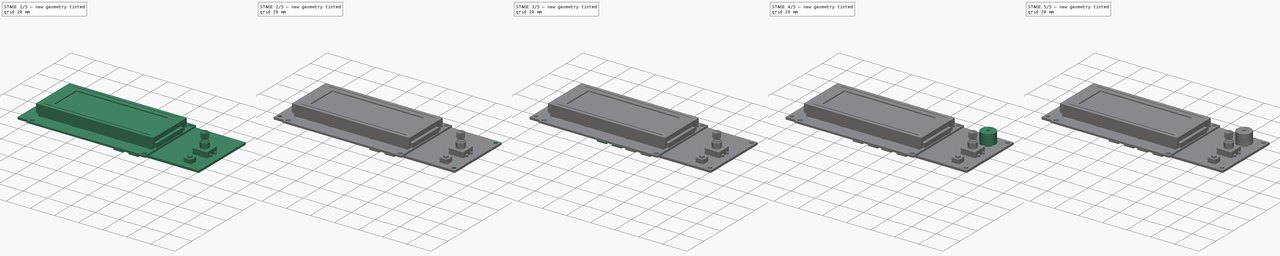
[diagram: build sequence overview — one tinted view per stage of 5, left to right]
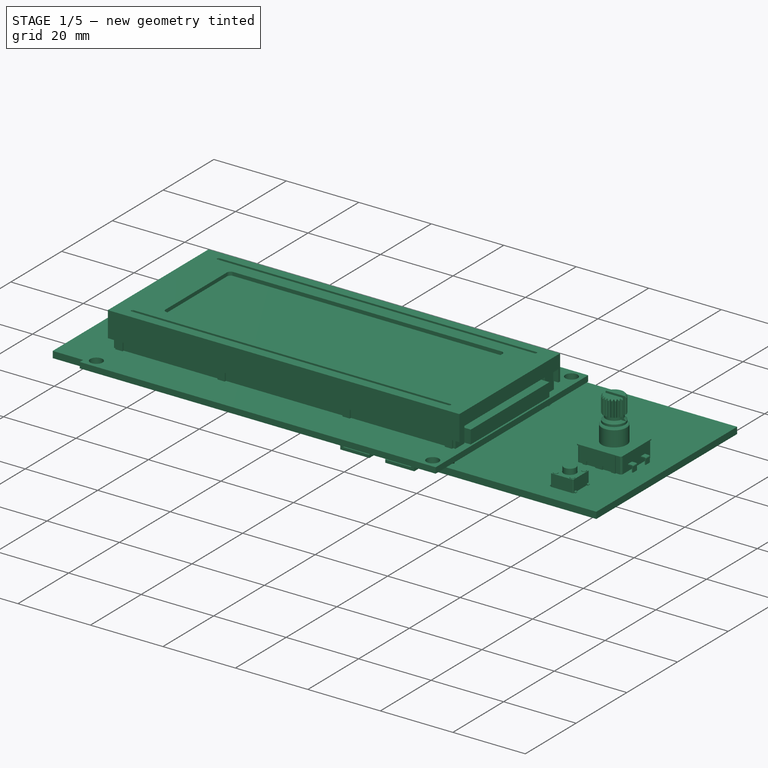
[diagram: stage 1 of 5 — iso view after this stage's code; geometry added in this stage tinted green]
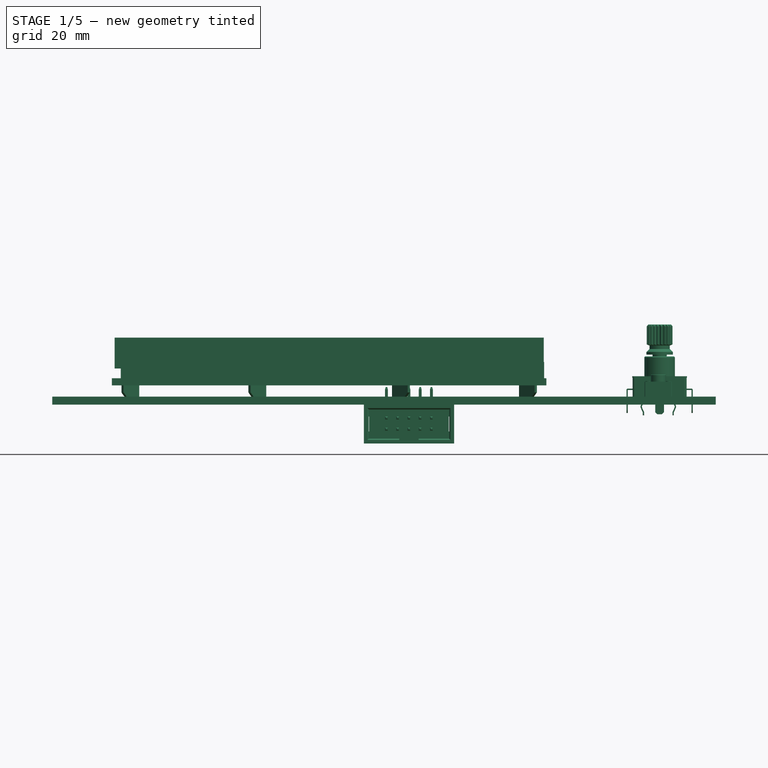
[diagram: stage 1 of 5 — front view after this stage's code; geometry added in this stage tinted green]
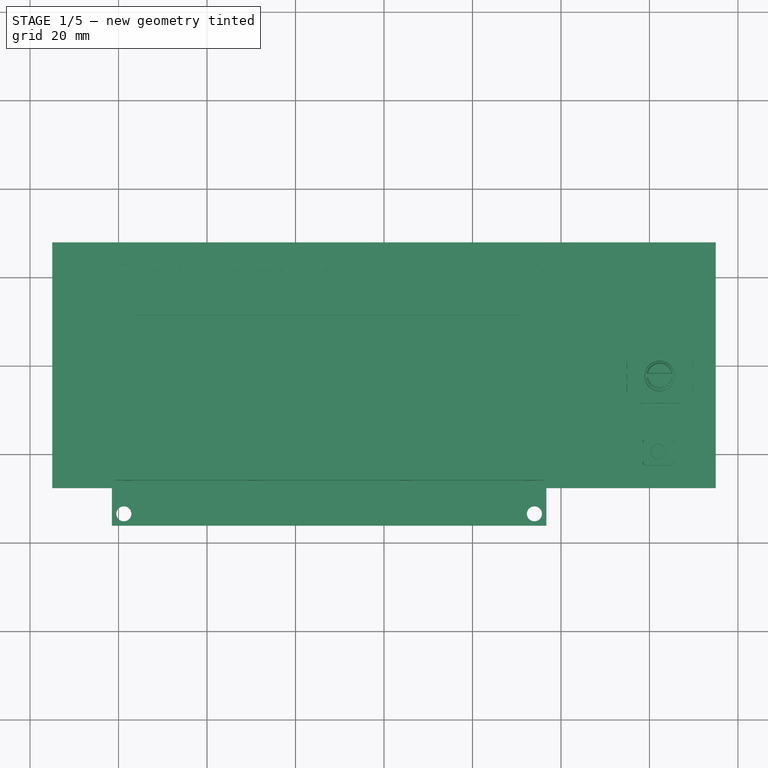
[diagram: stage 1 of 5 — top view after this stage's code; geometry added in this stage tinted green]
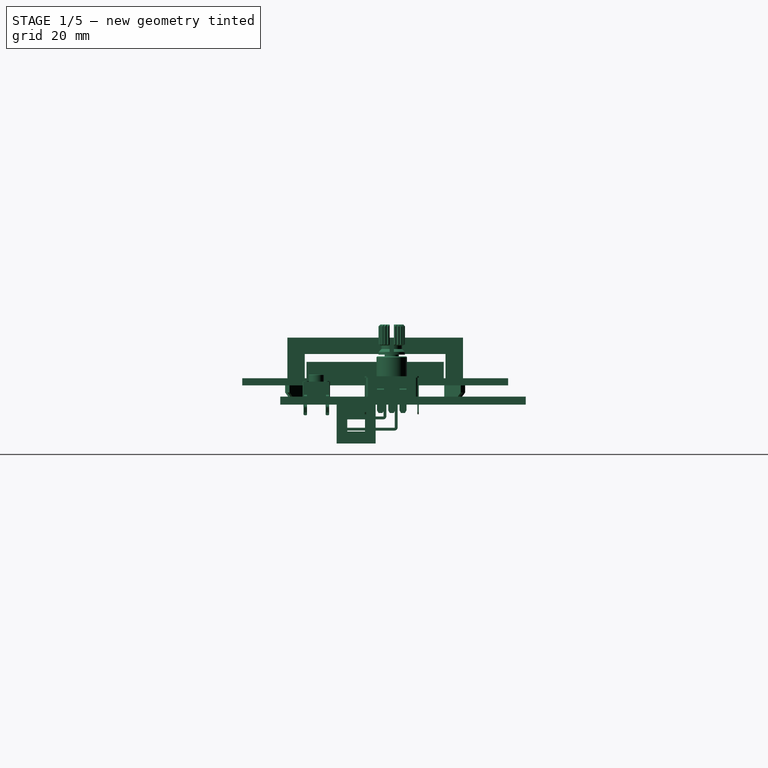
[diagram: stage 1 of 5 — right view after this stage's code; geometry added in this stage tinted green]
FCSTD DOCUMENT  (FreeCAD 0.14R3310 (Git))
Label: 78. PANEL PANTALLA LCD (Obijuan FreeCAD partes electricas)
License: CC-BY 3.0
LicenseURL: http://creativecommons.org/licenses/by/3.0/
objects: Sketcher::SketchObject×11, Part::Compound×10, PartDesign::Pocket×8, PartDesign::LinearPattern×4, PartDesign::Pad×3, App::DocumentObjectGroup×3, Part::Feature×2, Part::Cylinder×1
note: 50 computed .brp shape members not serialized (recipe doc carries the construction recipe); baked Part::Feature solids carry a one-line shape summary decoded from their .brp

FEATURE [Sketcher::SketchObject] Sketch  label="pcb-main-sketch"
  sketch-geometry (4):
    g0: LineSegment StartX=-75 StartY=27.75 StartZ=0 EndX=75 EndY=27.75 EndZ=0
    g1: LineSegment StartX=75 StartY=27.75 StartZ=0 EndX=75 EndY=-27.75 EndZ=0
    g2: LineSegment StartX=75 StartY=-27.75 StartZ=0 EndX=-75 EndY=-27.75 EndZ=0
    g3: LineSegment StartX=-75 StartY=-27.75 StartZ=0 EndX=-75 EndY=27.75 EndZ=0
  constraints (11):
    c: Coincident(g0,g1)
    c: Coincident(g1,g2)
    c: Coincident(g2,g3)
    c: Coincident(g3,g0)
    c: Horizontal(g0)
    c: Horizontal(g2)
    c: Vertical(g1)
    c: Vertical(g3)
    c: Symmetric(g0,g1,g-1)
    c: DistanceX(g0) = 150
    c: DistanceY(g1) = -55.5
FEATURE [PartDesign::Pad] Pad  label="pcb-main"
  Length = 1.8
  Length2 = 100
  Sketch = -> Sketch
  Type = 0
FEATURE [Part::Compound] Compound006  label="2x5-pin-box-header-male-right-angle001"
  Placement = pos=(5.64,-6.21,-4.4) rot=(1,0,0;3.14159rad)
FEATURE [Part::Compound] Compound007  label="lcd-4x20-backlight"
  Placement = pos=(-12.4,-6.30677,5.94) rot=(0,0,1;0rad)
FEATURE [Part::Compound] Compound008  label="pushbutton-mini"
  Placement = pos=(62,-19.6,1.8) rot=(0,0,1;0rad)
FEATURE [Part::Compound] Compound009  label="rotatory-encoder"
  Placement = pos=(62.3,-2.55,1.8) rot=(0,0,1;0rad)
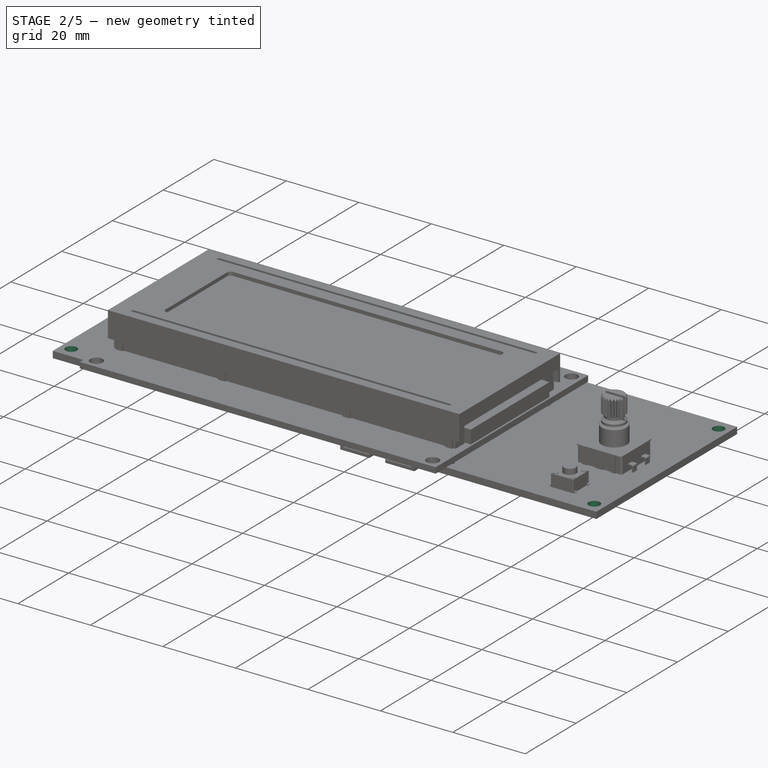
[diagram: stage 2 of 5 — iso view after this stage's code; geometry added in this stage tinted green]
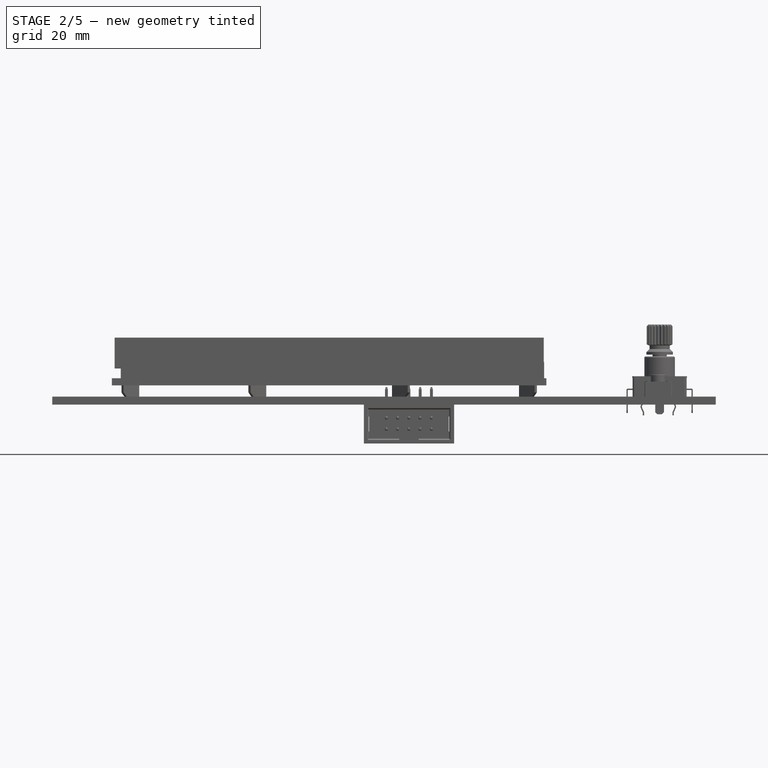
[diagram: stage 2 of 5 — front view after this stage's code; geometry added in this stage tinted green]
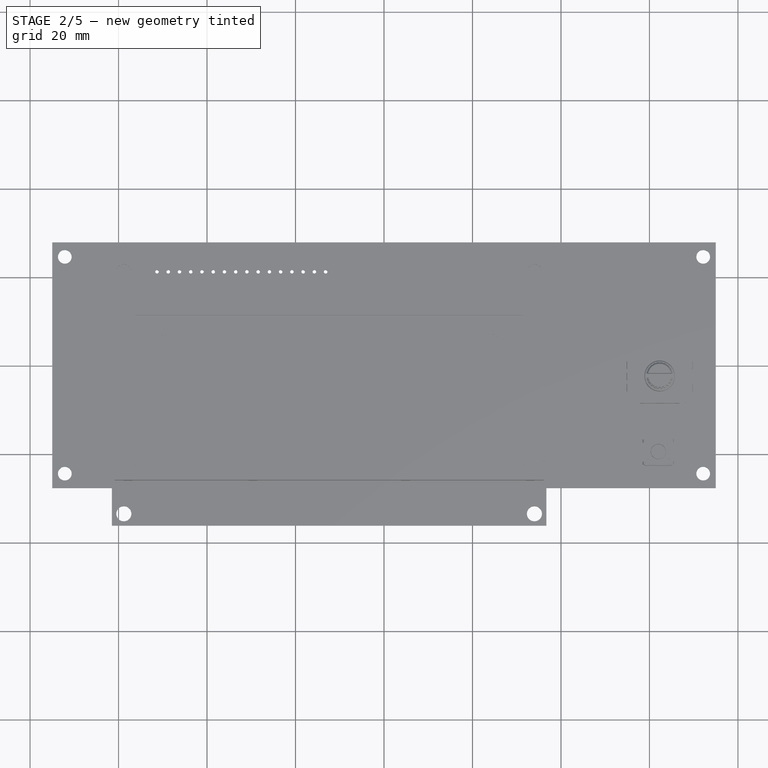
[diagram: stage 2 of 5 — top view after this stage's code; geometry added in this stage tinted green]
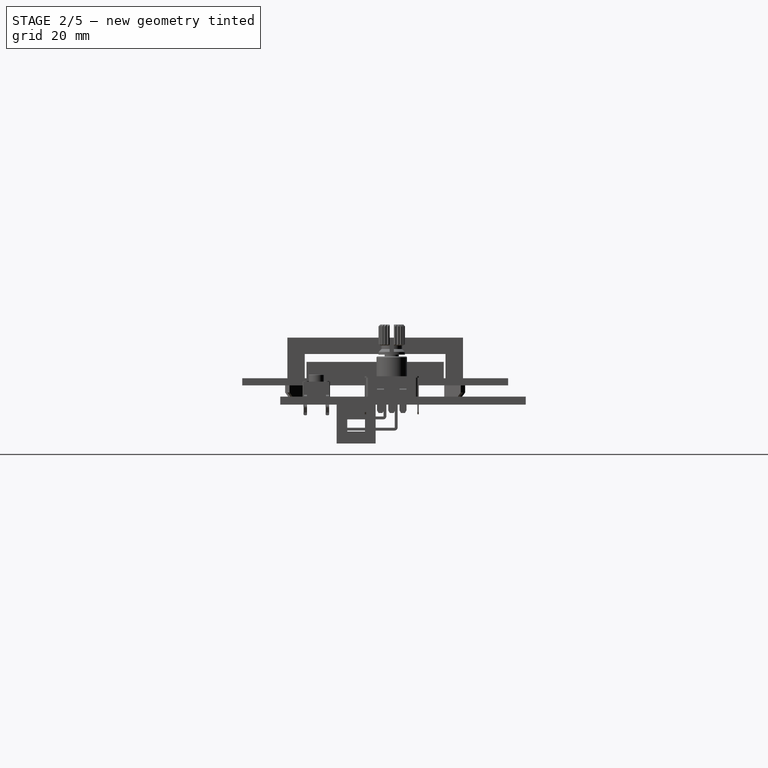
[diagram: stage 2 of 5 — right view after this stage's code; geometry added in this stage tinted green]
FEATURE [App::DocumentObjectGroup] Group  label="sdcard-slot-src"
  Group = -> [Pad001,Pocket,Pocket001]
FEATURE [Part::Feature] Pocket001001  label="sdcard-slot"
  Placement = pos=(-59.05,-7.45,0) rot=(0,1,0;3.14159rad)
  shape: bbox 29.1 x 28.6 x 2.9 mm, 18 faces (baked)
FEATURE [Sketcher::SketchObject] Sketch004  label="drills-sketch"
  ExternalGeometry = -> [Pad]
  Placement = pos=(0,0,1.8) rot=(0,0,1;0rad)
  Support = -> Pad [Face6]
  sketch-geometry (4):
    g0: Circle CenterX=-72.15 CenterY=24.5 CenterZ=0 NormalX=0 NormalY=0 NormalZ=1 Radius=1.55
    g1: Circle CenterX=72.15 CenterY=24.5 CenterZ=0 NormalX=0 NormalY=0 NormalZ=1 Radius=1.55
    g2: Circle CenterX=-72.15 CenterY=-24.5 CenterZ=0 NormalX=0 NormalY=0 NormalZ=1 Radius=1.55
    g3: Circle CenterX=72.15 CenterY=-24.5 CenterZ=0 NormalX=0 NormalY=0 NormalZ=1 Radius=1.55
  constraints (9):
    c: Radius(g0) = 1.55
    c: Equal(g0,g2)
    c: Equal(g2,g3)
    c: Equal(g3,g1)
    c: DistanceY(g-4,g0) = -3.25
    c: DistanceX(g0,g-4) = -2.85
    c: Symmetric(g0,g2,g-1)
    c: Symmetric(g0,g1,g-2)
    c: Symmetric(g1,g3,g-1)
FEATURE [PartDesign::Pocket] Pocket001002  label="pcs-drills"
  Length = 5
  Sketch = -> Sketch004
  Type = 1
FEATURE [Sketcher::SketchObject] Sketch005  label="lcd-connector-master-pad-sketch"
  Placement = pos=(0,0,1.8) rot=(0,0,1;0rad)
  Support = -> Pocket001002 [Face5]
  sketch-geometry (1):
    g0: Circle CenterX=-51.3 CenterY=21.0432 CenterZ=0 NormalX=0 NormalY=0 NormalZ=1 Radius=0.7
  constraints (1):
    c: Radius(g0) = 0.7
FEATURE [PartDesign::Pocket] Pocket001003  label="lcd-connector-master-pad"
  Length = 5
  Sketch = -> Sketch005
  Type = 1
FEATURE [PartDesign::LinearPattern] LinearPattern  label="pads-array"
  Direction = -> Sketch005 [H_Axis]
  Length = 38.1
  Occurrences = 16
  Originals = -> [Pocket001003]
FEATURE [Sketcher::SketchObject] Sketch006  label="header-1-pad-master-sketch"
  ExternalGeometry = -> [LinearPattern]
  Placement = pos=(0,0,1.8) rot=(0,0,1;0rad)
  Support = -> LinearPattern [Face5]
  sketch-geometry (3):
    g0: Circle CenterX=-23.1 CenterY=-1.55 CenterZ=0 NormalX=0 NormalY=0 NormalZ=1 Radius=0.7
    g1: Circle CenterX=-23.1 CenterY=-4.09 CenterZ=0 NormalX=0 NormalY=0 NormalZ=1 Radius=0.7
    g2: LineSegment [constr] StartX=-23.1 StartY=-1.55 StartZ=0 EndX=-23.1 EndY=-4.09 EndZ=0
  constraints (8):
    c: Radius(g0) = 0.7
    c: DistanceX(g-3,g0) = 51.9
    c: DistanceY(g0,g-4) = -26.2
    c: Equal(g1,g0)
    c: Vertical(g2)
    c: Coincident(g2,g0)
    c: Coincident(g2,g1)
    c: DistanceY(g2) = -2.54
FEATURE [PartDesign::Pocket] Pocket001004  label="header-1-pad-master"
  Length = 5
  Sketch = -> Sketch006
  Type = 1
FEATURE [PartDesign::LinearPattern] LinearPattern001  label="header-1-pads-array"
  Direction = -> Sketch006 [H_Axis]
  Length = 10.16
  Occurrences = 5
  Originals = -> [Pocket001004]
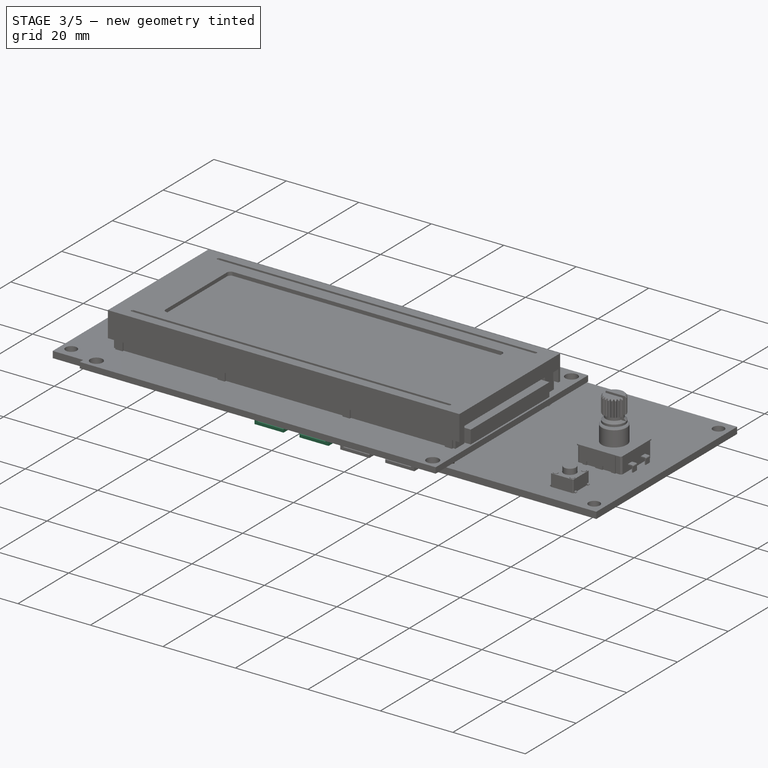
[diagram: stage 3 of 5 — iso view after this stage's code; geometry added in this stage tinted green]
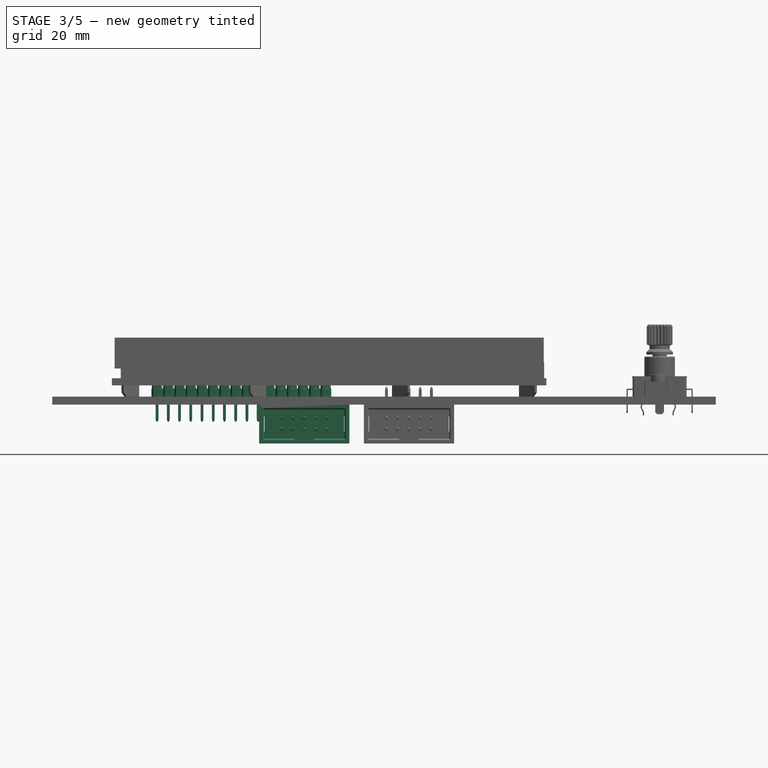
[diagram: stage 3 of 5 — front view after this stage's code; geometry added in this stage tinted green]
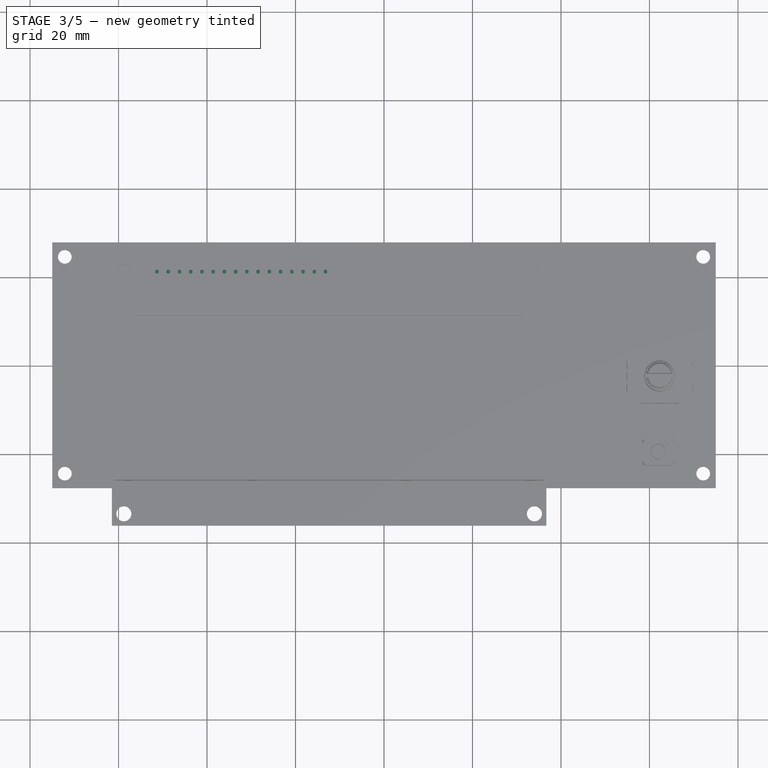
[diagram: stage 3 of 5 — top view after this stage's code; geometry added in this stage tinted green]
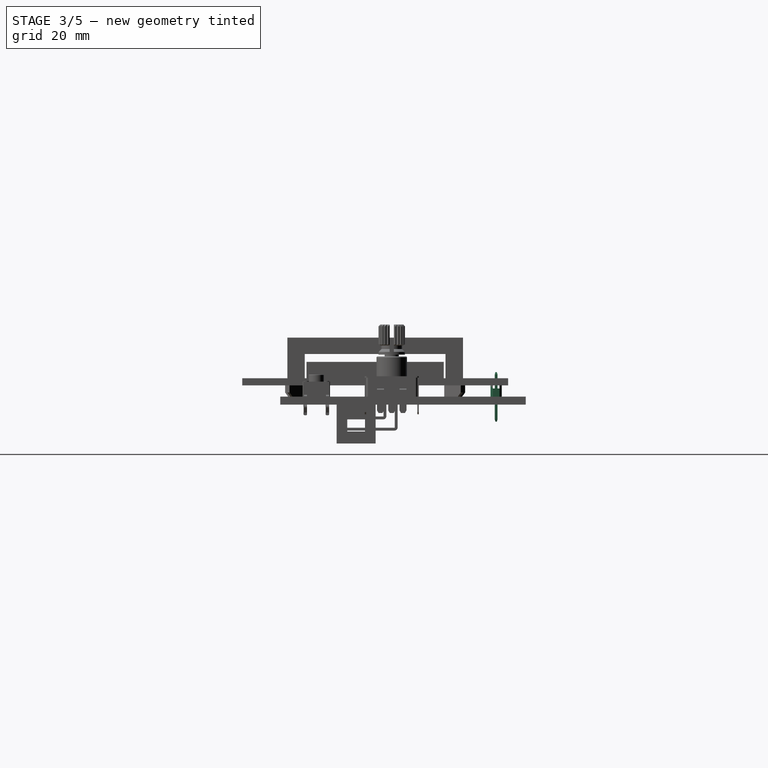
[diagram: stage 3 of 5 — right view after this stage's code; geometry added in this stage tinted green]
FEATURE [Sketcher::SketchObject] Sketch007  label="header-2-pad-master-sketch"
  ExternalGeometry = -> [LinearPattern001]
  Placement = pos=(0,0,1.8) rot=(0,0,1;0rad)
  Support = -> LinearPattern001 [Face5]
  sketch-geometry (3):
    g0: Circle CenterX=0.56 CenterY=-1.55 CenterZ=0 NormalX=0 NormalY=0 NormalZ=1 Radius=0.7
    g1: Circle CenterX=0.56 CenterY=-4.09 CenterZ=0 NormalX=0 NormalY=0 NormalZ=1 Radius=0.7
    g2: LineSegment [constr] StartX=0.56 StartY=-1.55 StartZ=0 EndX=0.56 EndY=-4.09 EndZ=0
  constraints (8):
    c: Radius(g0) = 0.7
    c: Equal(g1,g0)
    c: Vertical(g2)
    c: Coincident(g2,g0)
    c: Coincident(g2,g1)
    c: DistanceY(g2) = -2.54
    c: DistanceY(g0,g-3) = -26.2
    c: DistanceX(g-3,g0) = 75.56
FEATURE [PartDesign::Pocket] Pocket001005  label="header-2-pad-master"
  Length = 5
  Sketch = -> Sketch007
  Type = 1
FEATURE [Part::Cylinder] Cylinder  label="potentiometer-head-body"
  Angle = 360
  Height = 0.5
  Placement = pos=(0,0,1.3) rot=(0,0,1;0rad)
  Radius = 1.05
FEATURE [App::DocumentObjectGroup] Group002  label="potentiometer-src"
  Group = -> [Pad002,Pocket001006,Cylinder,Pocket001007,Compound002]
FEATURE [Part::Compound] Compound003  label="1x8-male-pin-header"
  Placement = pos=(-33.52,21.0432,4.34) rot=(0,1,0;3.14159rad)
FEATURE [Part::Compound] Compound004  label="1x8-male-pin-header001"
  Placement = pos=(-13.2,21.0432,4.34) rot=(0,1,0;3.14159rad)
FEATURE [Part::Compound] Compound005  label="2x5-pin-box-header-male-right-angle"
  Placement = pos=(-18.02,-6.21,-4.4) rot=(1,0,0;3.14159rad)
FEATURE [PartDesign::LinearPattern] LinearPattern002002  label="pcb001"
  Direction = -> Sketch007 [H_Axis]
  Length = 10.16
  Occurrences = 5
  Originals = -> [Pocket001005]
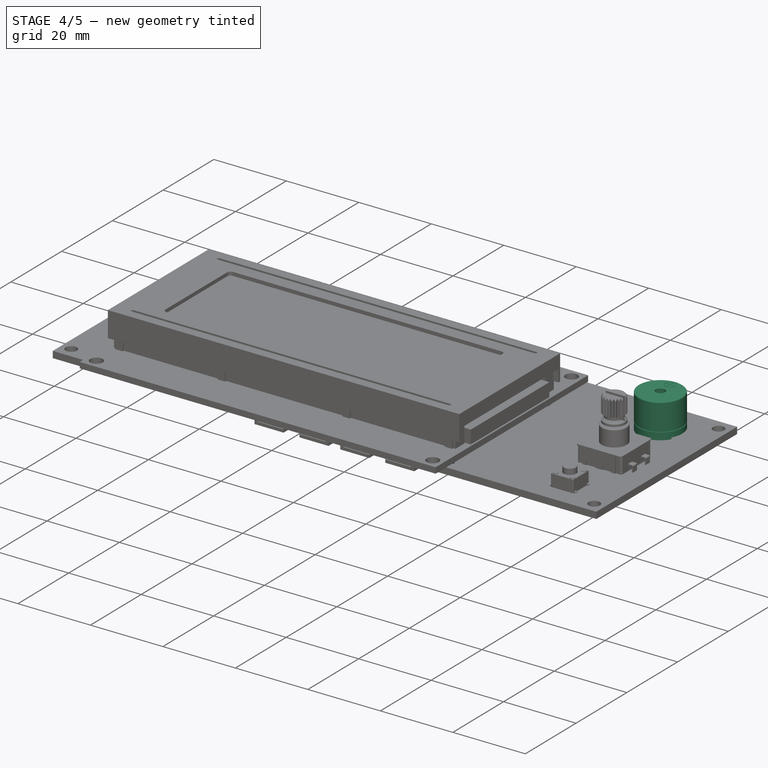
[diagram: stage 4 of 5 — iso view after this stage's code; geometry added in this stage tinted green]
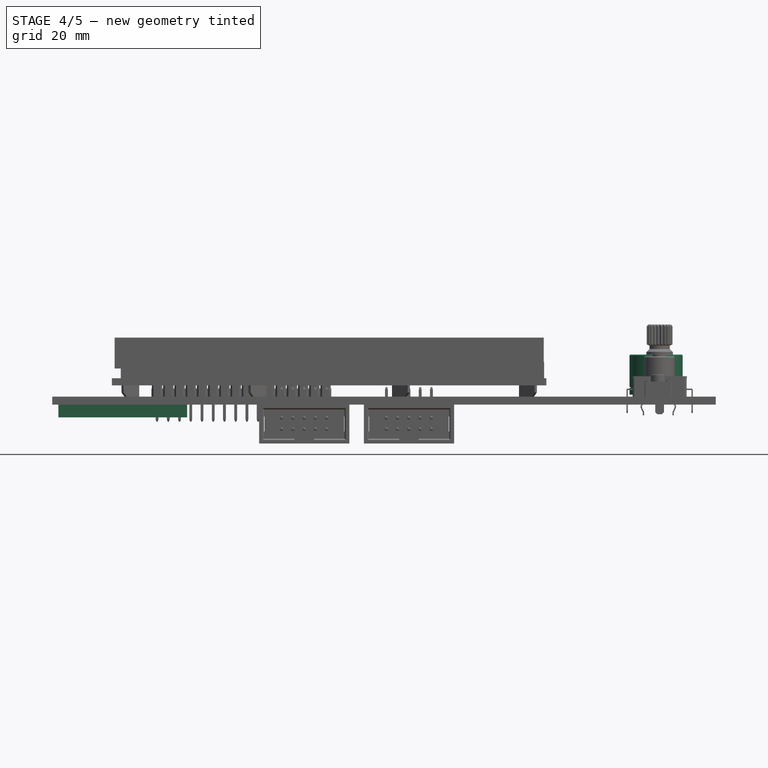
[diagram: stage 4 of 5 — front view after this stage's code; geometry added in this stage tinted green]
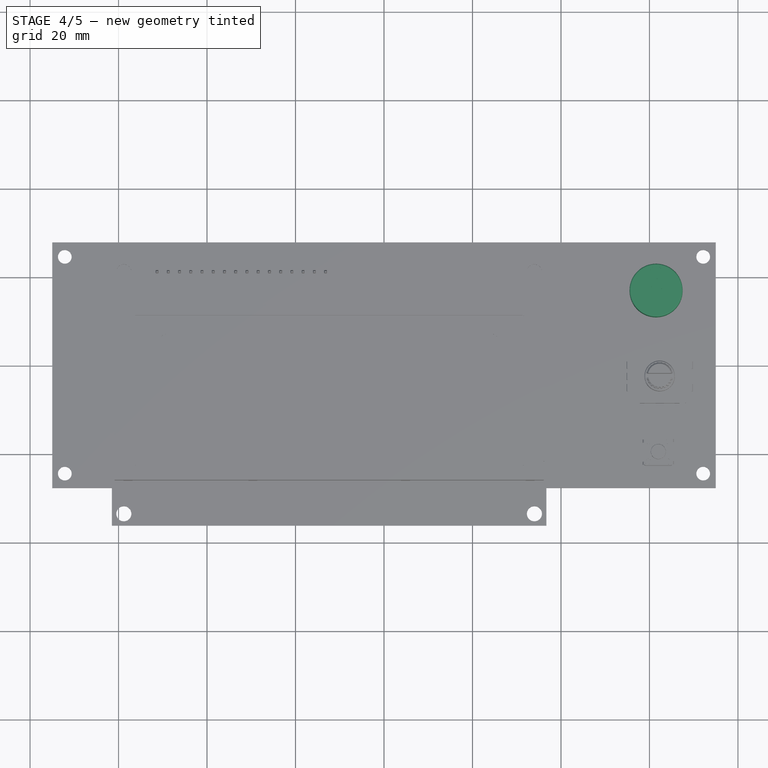
[diagram: stage 4 of 5 — top view after this stage's code; geometry added in this stage tinted green]
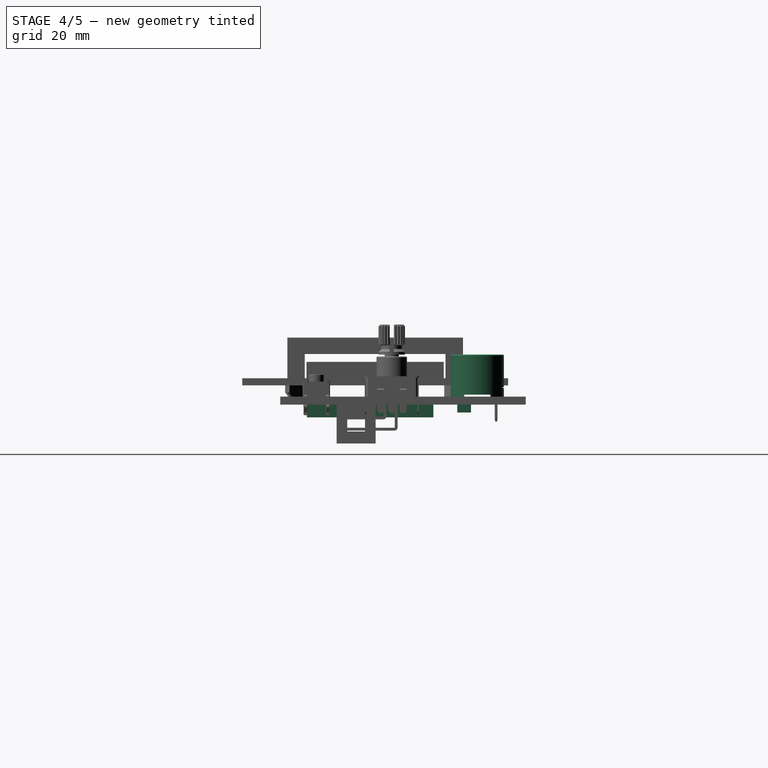
[diagram: stage 4 of 5 — right view after this stage's code; geometry added in this stage tinted green]
FEATURE [App::DocumentObjectGroup] Group001  label="pcb-src"
  Group = -> [Pad,Pocket001002,Pocket001003,LinearPattern,Pocket001004,LinearPattern001,Pocket001005,LinearPattern002]
FEATURE [Sketcher::SketchObject] Sketch008  label="potentiometer-main-sketch"
  sketch-geometry (4):
    g0: LineSegment StartX=-1.8 StartY=1.55 StartZ=0 EndX=1.8 EndY=1.55 EndZ=0
    g1: LineSegment StartX=1.8 StartY=1.55 StartZ=0 EndX=1.8 EndY=-1.55 EndZ=0
    g2: LineSegment StartX=1.8 StartY=-1.55 StartZ=0 EndX=-1.8 EndY=-1.55 EndZ=0
    g3: LineSegment StartX=-1.8 StartY=-1.55 StartZ=0 EndX=-1.8 EndY=1.55 EndZ=0
  constraints (11):
    c: Coincident(g0,g1)
    c: Coincident(g1,g2)
    c: Coincident(g2,g3)
    c: Coincident(g3,g0)
    c: Horizontal(g0)
    c: Horizontal(g2)
    c: Vertical(g1)
    c: Vertical(g3)
    c: Symmetric(g0,g1,g-1)
    c: DistanceY(g1) = -3.1
    c: DistanceX(g0) = 3.6
FEATURE [PartDesign::Pad] Pad002  label="potentiometer-main"
  Length = 1.8
  Length2 = 100
  Sketch = -> Sketch008
  Type = 0
FEATURE [Sketcher::SketchObject] Sketch009  label="potentiometer-cutout-1-sketch"
  Placement = pos=(0,0,1.8) rot=(0,0,1;0rad)
  Support = -> Pad002 [Face6]
  sketch-geometry (1):
    g0: Circle CenterX=0 CenterY=0 CenterZ=0 NormalX=0 NormalY=0 NormalZ=1 Radius=1.1
  constraints (2):
    c: Radius(g0) = 1.1
    c: Coincident(g0,g-1)
FEATURE [PartDesign::Pocket] Pocket001006  label="potentiometer-cutout-1"
  Length = 0.5
  Sketch = -> Sketch009
  Type = 0
FEATURE [Sketcher::SketchObject] Sketch010  label="potentiometer-cross-sketch"
  ExternalGeometry = -> [Cylinder]
  Placement = pos=(0,0,1.8) rot=(0,0,1;0rad)
  Support = -> Cylinder [Face2]
  sketch-geometry (12):
    g0: LineSegment StartX=0.175 StartY=0.775 StartZ=0 EndX=-0.175 EndY=0.775 EndZ=0
    g1: LineSegment StartX=-0.175 StartY=0.775 StartZ=0 EndX=-0.175 EndY=0.175 EndZ=0
    g2: LineSegment StartX=-0.175 StartY=0.175 StartZ=0 EndX=-0.775 EndY=0.175 EndZ=0
    g3: LineSegment StartX=-0.775 StartY=0.175 StartZ=0 EndX=-0.775 EndY=-0.175 EndZ=0
    g4: LineSegment StartX=-0.775 StartY=-0.175 StartZ=0 EndX=-0.175 EndY=-0.175 EndZ=0
    g5: LineSegment StartX=-0.175 StartY=-0.175 StartZ=0 EndX=-0.175 EndY=-0.775 EndZ=0
    g6: LineSegment StartX=-0.175 StartY=-0.775 StartZ=0 EndX=0.175 EndY=-0.775 EndZ=0
    g7: LineSegment StartX=0.175 StartY=-0.775 StartZ=0 EndX=0.175 EndY=-0.175 EndZ=0
    g8: LineSegment StartX=0.175 StartY=-0.175 StartZ=0 EndX=0.775 EndY=-0.175 EndZ=0
    g9: LineSegment StartX=0.775 StartY=-0.175 StartZ=0 EndX=0.775 EndY=0.175 EndZ=0
    g10: LineSegment StartX=0.775 StartY=0.175 StartZ=0 EndX=0.175 EndY=0.175 EndZ=0
    g11: LineSegment StartX=0.175 StartY=0.175 StartZ=0 EndX=0.175 EndY=0.775 EndZ=0
  constraints (34):
    c: Coincident(g0,g1)
    c: Coincident(g1,g2)
    c: Coincident(g2,g3)
    c: Coincident(g3,g4)
    c: Coincident(g4,g5)
    c: Coincident(g5,g6)
    c: Coincident(g6,g7)
    c: Coincident(g7,g8)
    c: Coincident(g8,g9)
    c: Coincident(g9,g10)
    c: Coincident(g10,g11)
    c: Coincident(g11,g0)
    c: Horizontal(g0)
    c: Horizontal(g4)
    c: Horizontal(g8)
    c: Horizontal(g10)
    c: Horizontal(g6)
    c: Vertical(g1)
    c: Vertical(g11)
    c: Vertical(g3)
    c: Vertical(g9)
    c: Vertical(g5)
    c: Vertical(g7)
    c: Symmetric(g0,g0,g-2)
    c: Symmetric(g2,g3,g-1)
    c: Equal(g2,g1)
    c: DistanceY(g1) = -0.6
    c: Symmetric(g1,g10,g-2)
    c: Symmetric(g9,g2,g-2)
    c: Symmetric(g4,g7,g-2)
    c: Symmetric(g4,g1,g-1)
    c: Equal(g3,g0)
    c: DistanceY(g3) = -0.35
    c: Symmetric(g6,g0,g-1)
FEATURE [PartDesign::Pocket] Pocket001007  label="potentiometer-cross"
  Length = 0.2
  Placement = pos=(0,0,1.3) rot=(0,0,1;0rad)
  Sketch = -> Sketch010
  Type = 0
FEATURE [Part::Compound] Compound001  label="potentiometer-1"
  Links = -> [Pocket001006,Pocket001007]
  Placement = pos=(-50.5,13.8,0) rot=(0,1,0;3.14159rad)
FEATURE [Part::Feature] Part__Feature  label="Buzzer"
  Placement = pos=(61.5,16.7884,1.75927) rot=(0,0,1;0rad)
  shape: bbox 12.99 x 12.99 x 11.07 mm, 50 faces (baked)
FEATURE [Part::Compound] Compound  label="smart-lcd-ramps"
  Links = -> [Pocket001001,Compound001,Compound003,Compound004,Compound005,LinearPattern002002,Compound006,Compound007,Compound008,Compound009,Part__Feature]
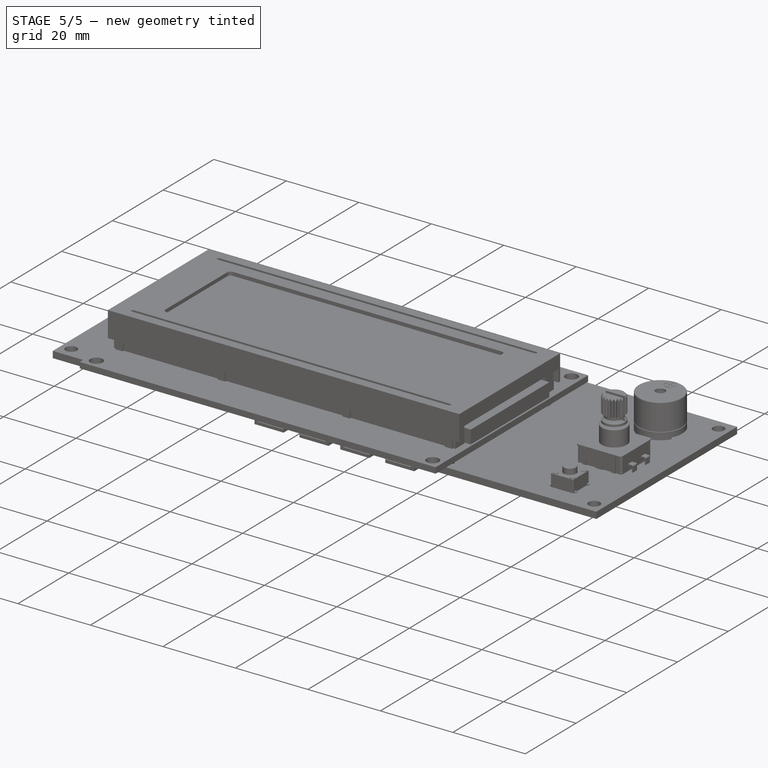
[diagram: stage 5 of 5 — iso view after this stage's code; geometry added in this stage tinted green]
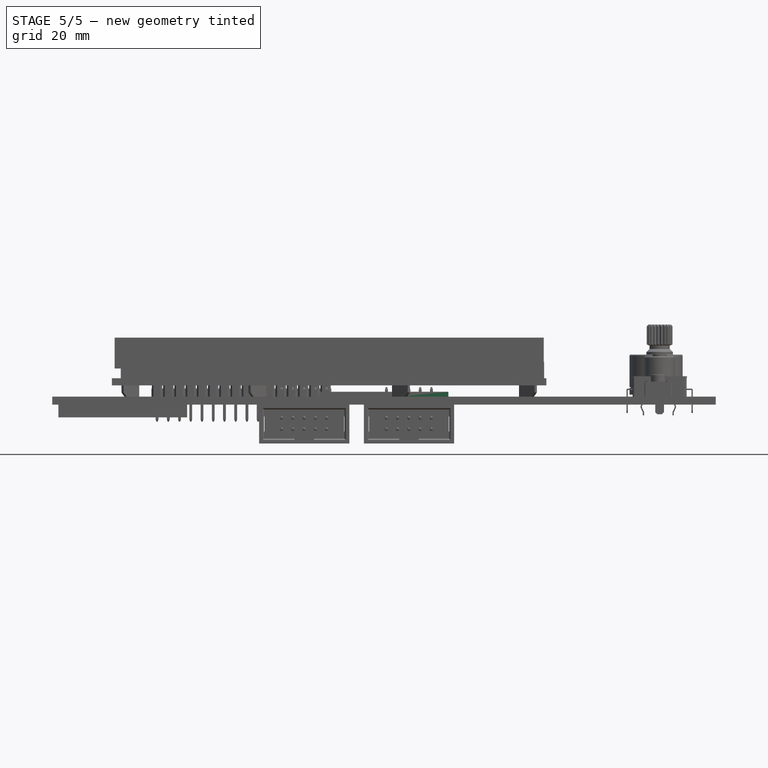
[diagram: stage 5 of 5 — front view after this stage's code; geometry added in this stage tinted green]
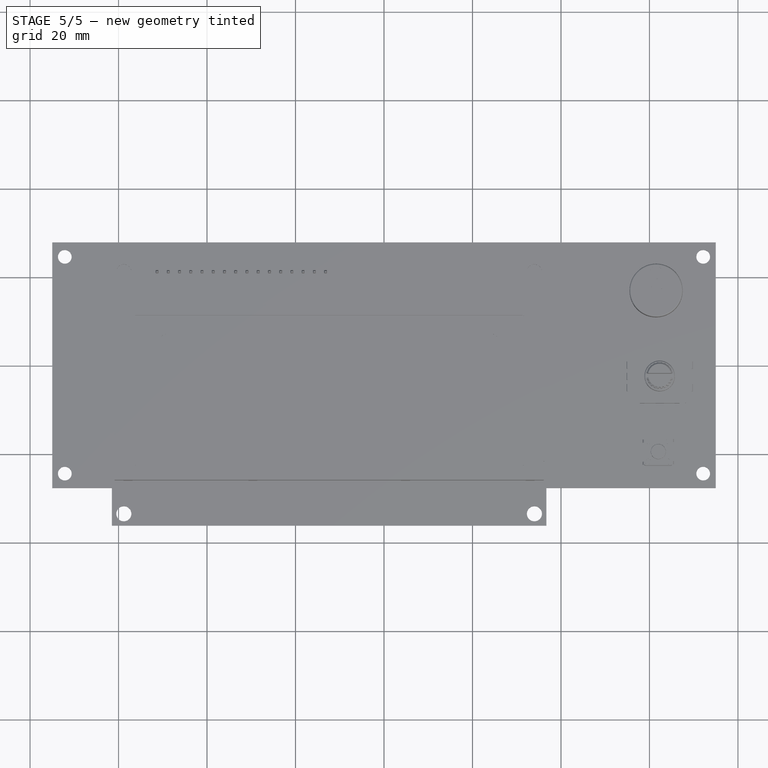
[diagram: stage 5 of 5 — top view after this stage's code; geometry added in this stage tinted green]
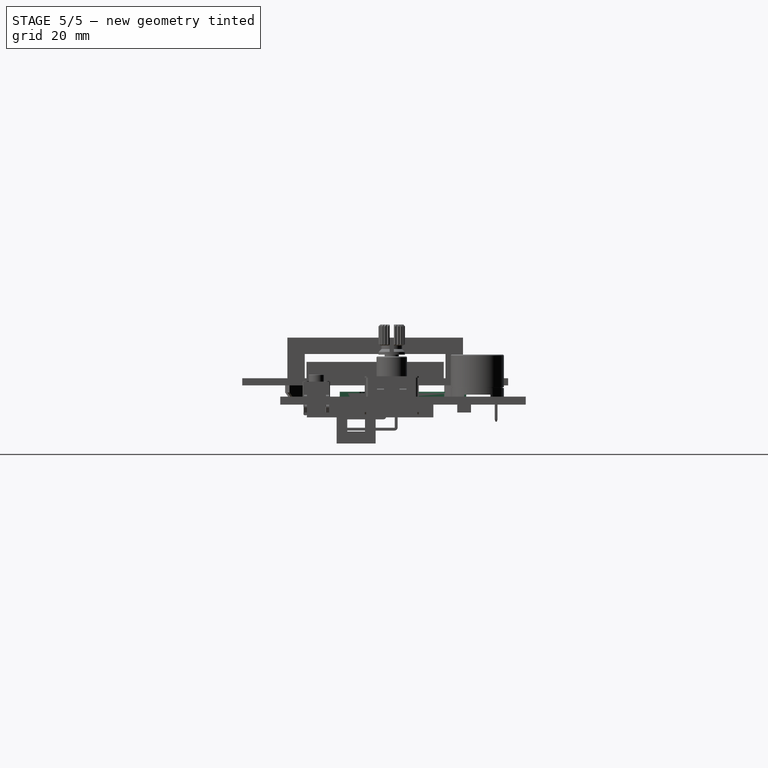
[diagram: stage 5 of 5 — right view after this stage's code; geometry added in this stage tinted green]
FEATURE [Sketcher::SketchObject] Sketch001  label="sdcard-slot-main-body-sketch"
  sketch-geometry (4):
    g0: LineSegment StartX=-14.55 StartY=14.3 StartZ=0 EndX=14.55 EndY=14.3 EndZ=0
    g1: LineSegment StartX=14.55 StartY=14.3 StartZ=0 EndX=14.55 EndY=-14.3 EndZ=0
    g2: LineSegment StartX=14.55 StartY=-14.3 StartZ=0 EndX=-14.55 EndY=-14.3 EndZ=0
    g3: LineSegment StartX=-14.55 StartY=-14.3 StartZ=0 EndX=-14.55 EndY=14.3 EndZ=0
  constraints (11):
    c: Coincident(g0,g1)
    c: Coincident(g1,g2)
    c: Coincident(g2,g3)
    c: Coincident(g3,g0)
    c: Horizontal(g0)
    c: Horizontal(g2)
    c: Vertical(g1)
    c: Vertical(g3)
    c: Symmetric(g0,g1,g-1)
    c: DistanceX(g0) = 29.1
    c: DistanceY(g3) = 28.6
FEATURE [PartDesign::Pad] Pad001  label="sdcard-slot-main-body"
  Length = 2.9
  Length2 = 100
  Sketch = -> Sketch001
  Type = 0
FEATURE [Sketcher::SketchObject] Sketch002  label="sdcard-slot-cutout-1-sketch"
  ExternalGeometry = -> [Pad001]
  Placement = pos=(14.55,0,0) rot=(0.57735,0.57735,0.57735;2.0944rad)
  Support = -> Pad001 [Face2]
  sketch-geometry (8):
    g0: LineSegment StartX=12.5 StartY=0.9 StartZ=0 EndX=12.5 EndY=2.6 EndZ=0
    g1: LineSegment StartX=12.5 StartY=2.6 StartZ=0 EndX=-12.5 EndY=2.6 EndZ=0
    g2: LineSegment StartX=-12.5 StartY=2.6 StartZ=0 EndX=-12.5 EndY=0.9 EndZ=0
    g3: LineSegment StartX=-12.5 StartY=0.9 StartZ=0 EndX=-11.6 EndY=0.9 EndZ=0
    g4: LineSegment StartX=-11.6 StartY=0.9 StartZ=0 EndX=-11.6 EndY=0 EndZ=0
    g5: LineSegment StartX=-11.6 StartY=0 StartZ=0 EndX=11.6 EndY=0 EndZ=0
    g6: LineSegment StartX=12.5 StartY=0.9 StartZ=0 EndX=11.6 EndY=0.9 EndZ=0
    g7: LineSegment StartX=11.6 StartY=0.9 StartZ=0 EndX=11.6 EndY=0 EndZ=0
  constraints (24):
    c: Coincident(g0,g1)
    c: Coincident(g1,g2)
    c: Horizontal(g1)
    c: Vertical(g0)
    c: Vertical(g2)
    c: DistanceY(g1,g-3) = 0.3
    c: DistanceX(g1,g-3) = -1.8
    c: DistanceY(g-1,g2) = 0.9
    c: Coincident(g2,g3)
    c: Horizontal(g3)
    c: Coincident(g3,g4)
    c: PointOnObject(g4,g-1)
    c: Vertical(g4)
    c: Coincident(g4,g5)
    c: Horizontal(g5)
    c: DistanceX(g3) = 0.9
    c: Symmetric(g1,g0,g-2)
    c: Symmetric(g2,g0,g-2)
    c: Horizontal(g6)
    c: Coincident(g6,g7)
    c: Vertical(g7)
    c: Coincident(g6,g0)
    c: Symmetric(g6,g3,g-2)
    c: Coincident(g5,g7)
FEATURE [PartDesign::Pocket] Pocket  label="sdcard-slot-cutout-1"
  Length = 18
  Sketch = -> Sketch002
  Type = 0
FEATURE [Sketcher::SketchObject] Sketch003  label="top-cutout-2-sketch"
  ExternalGeometry = -> [Pocket]
  Placement = pos=(0,0,2.9) rot=(0,0,1;0rad)
  Support = -> Pocket [Face5]
  sketch-geometry (7):
    g0: ArcOfCircle CenterX=13.95 CenterY=10.0822 CenterZ=0 NormalX=0 NormalY=0 NormalZ=1 Radius=0.6 StartAngle=4.77182 EndAngle=6.28319
    g1: LineSegment [constr] StartX=13.95 StartY=10.0822 StartZ=0 EndX=14.55 EndY=10.0822 EndZ=0
    g2: ArcOfCircle CenterX=14.55 CenterY=0 CenterZ=0 NormalX=0 NormalY=0 NormalZ=1 Radius=9.5 StartAngle=1.63024 EndAngle=4.65295
    g3: ArcOfCircle CenterX=13.95 CenterY=-10.0822 CenterZ=0 NormalX=0 NormalY=0 NormalZ=1 Radius=0.6 StartAngle=0 EndAngle=1.51136
    g4: LineSegment StartX=14.55 StartY=10.0822 StartZ=0 EndX=15.55 EndY=10.0822 EndZ=0
    g5: LineSegment StartX=15.55 StartY=10.0822 StartZ=0 EndX=15.55 EndY=-10.0822 EndZ=0
    g6: LineSegment StartX=15.55 StartY=-10.0822 StartZ=0 EndX=14.55 EndY=-10.0822 EndZ=0
  constraints (22):
    c: PointOnObject(g0,g-3)
    c: Horizontal(g1)
    c: Coincident(g1,g0)
    c: Coincident(g1,g0)
    c: PointOnObject(g2,g-3)
    c: PointOnObject(g2,g-1)
    c: Radius(g2) = 9.5
    c: Coincident(g2,g0)
    c: Tangent(g2,g0)
    c: Symmetric(g2,g0,g-1)
    c: Coincident(g3,g2)
    c: Symmetric(g3,g0,g-1)
    c: Symmetric(g3,g0,g-1)
    c: Radius(g0) = 0.6
    c: Coincident(g4,g5)
    c: Coincident(g5,g6)
    c: Horizontal(g4)
    c: Horizontal(g6)
    c: Vertical(g5)
    c: Coincident(g6,g3)
    c: Coincident(g4,g0)
    c: DistanceX(g4) = 1
FEATURE [PartDesign::Pocket] Pocket001  label="top-cutout-2"
  Length = 2
  Sketch = -> Sketch003
  Type = 0
FEATURE [PartDesign::LinearPattern] LinearPattern002  label="header-2-pads-array"
  Direction = -> Sketch007 [H_Axis]
  Length = 10.16
  Occurrences = 5
  Originals = -> [Pocket001005]
FEATURE [Part::Compound] Compound002  label="potentiometer"
  Links = -> [Pocket001006,Pocket001007]
  Placement = pos=(-50.5,13.8,0) rot=(0,1,0;3.14159rad)
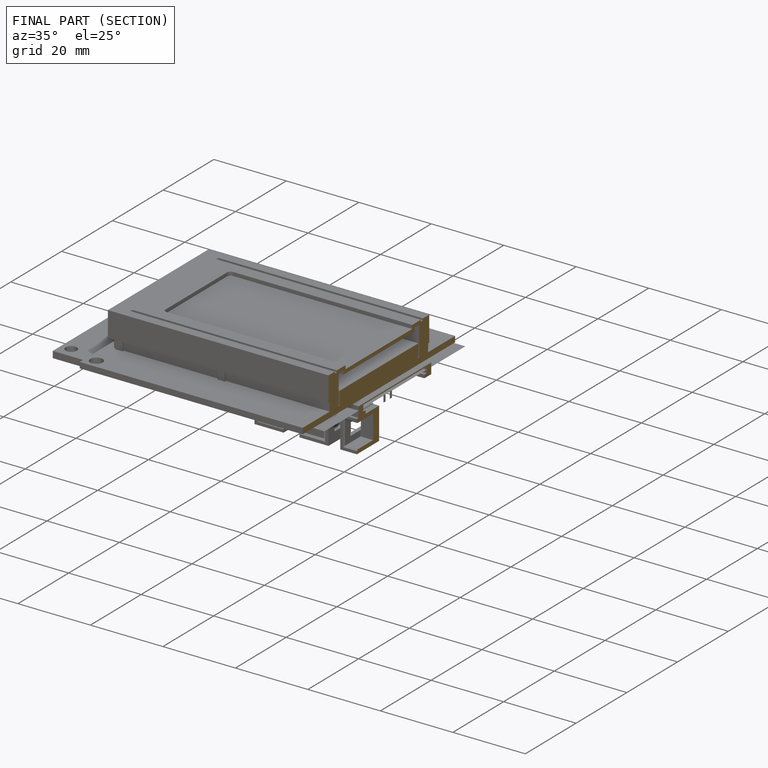
[diagram: finished part — half-section view (interior)]
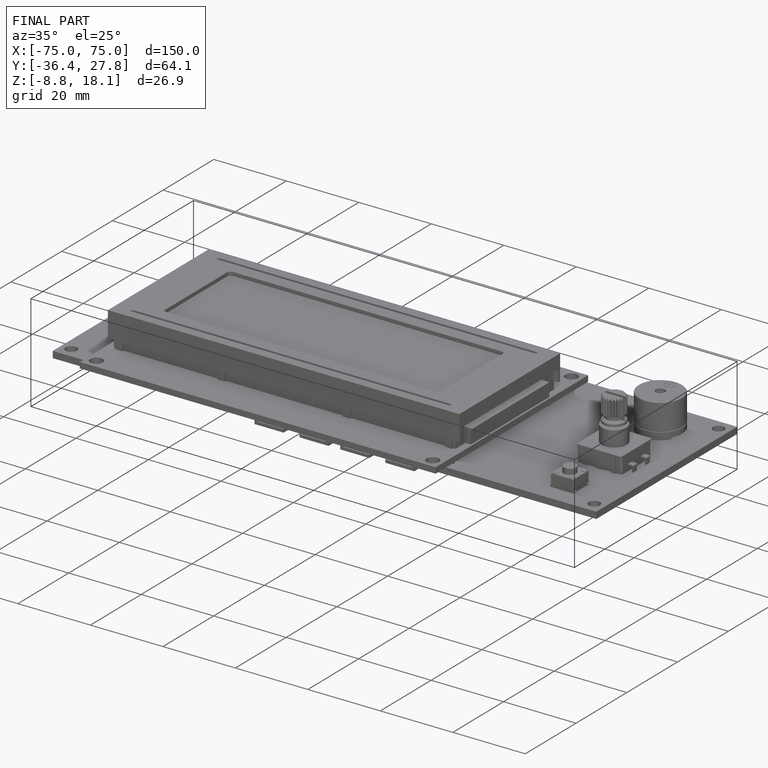
[diagram: finished part — iso view with bounding-box wireframe]
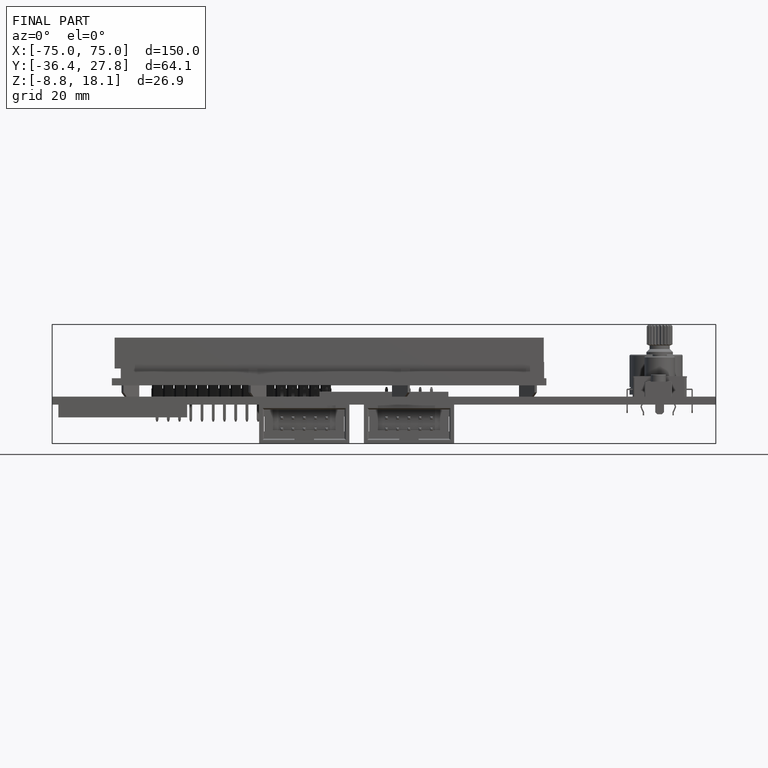
[diagram: finished part — front view with bounding-box wireframe]
